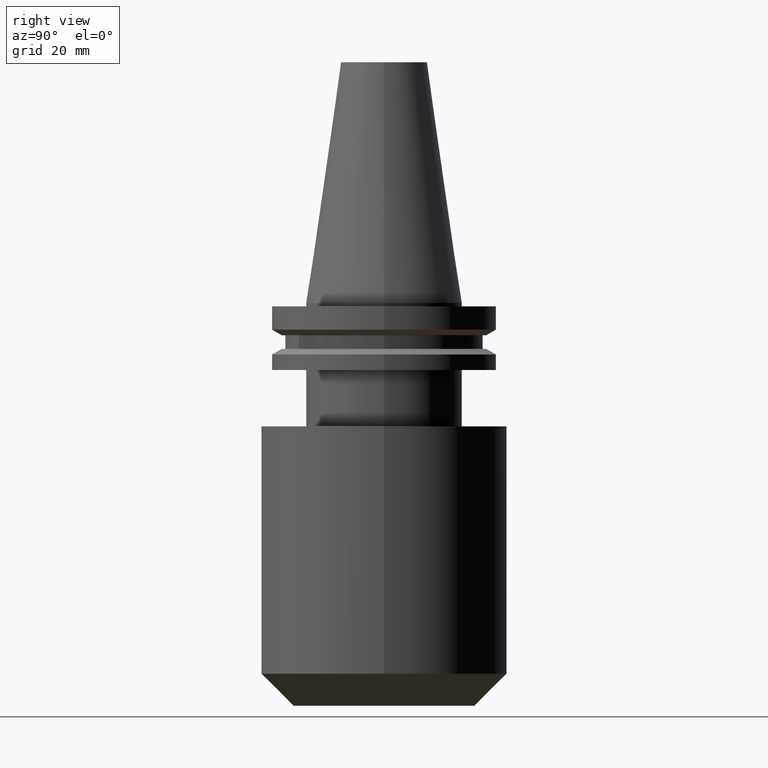
[diagram: clean part render]
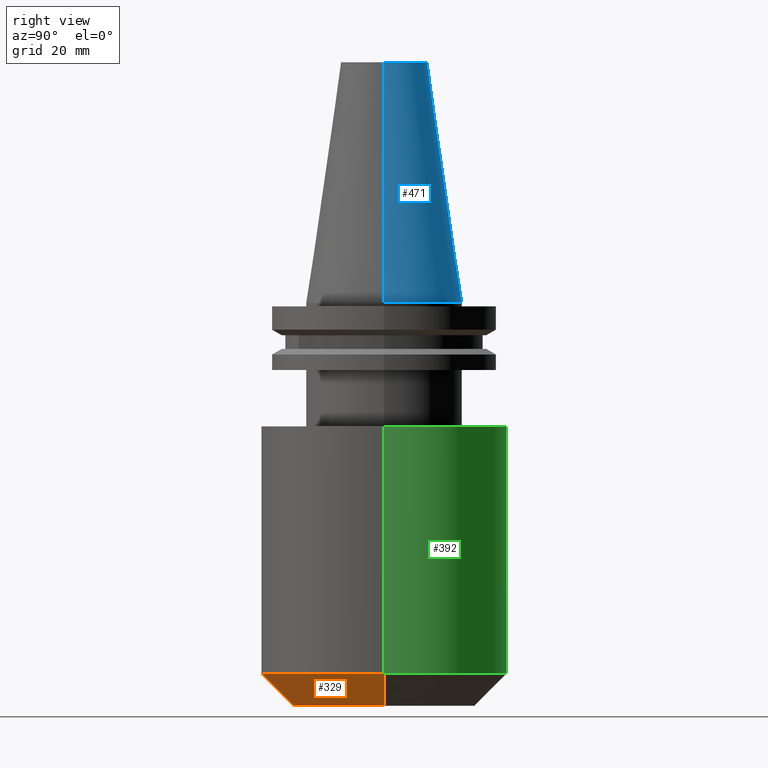
[diagram: same view with three faces highlighted in distinct colors, each labeled with its STEP entity id]
A machine part, right view with three faces highlighted in distinct colors.
Their STEP definitions:

[orange] entity #329 — the highlighted conical surface has half-angle 45 deg.
#101 = DIRECTION ( 'NONE',  ( 1.000000000000000000, 0.000000000000000000, 0.000000000000000000 ) ) ;
#164 = ORIENTED_EDGE ( 'NONE', *, *, #542, .F. ) ;
#181 = DIRECTION ( 'NONE',  ( -0.000000000000000000, -0.000000000000000000, 1.000000000000000000 ) ) ;
#185 = CARTESIAN_POINT ( 'NONE',  ( -34.95000000000000284, 4.280140563019999423E-15, -105.2000000000000028 ) ) ;
#197 = CIRCLE ( 'NONE', #677, 25.84999999999996945 ) ;
#223 = VECTOR ( 'NONE', #768, 999.9999999999998863 ) ;
#228 = VERTEX_POINT ( 'NONE', #643 ) ;
#279 = AXIS2_PLACEMENT_3D ( 'NONE', #843, #181, #101 ) ;
#295 = EDGE_CURVE ( 'NONE', #381, #228, #520, .T. ) ;
#315 = CARTESIAN_POINT ( 'NONE',  ( 0.000000000000000000, 0.000000000000000000, -105.2000000000000028 ) ) ;
#329 = ADVANCED_FACE ( 'NONE', ( #708 ), #615, .T. ) ;
#375 = ORIENTED_EDGE ( 'NONE', *, *, #295, .F. ) ;
#381 = VERTEX_POINT ( 'NONE', #185 ) ;
#448 = VERTEX_POINT ( 'NONE', #462 ) ;
#462 = CARTESIAN_POINT ( 'NONE',  ( -25.84999999999996945, 3.722926269407952606E-15, -114.2999999999999972 ) ) ;
#496 = CARTESIAN_POINT ( 'NONE',  ( -25.84999999999996945, 3.165711975795904211E-15, -114.2999999999999972 ) ) ;
#514 = DIRECTION ( 'NONE',  ( 1.000000000000000000, 0.000000000000000000, 0.000000000000000000 ) ) ;
#515 = ORIENTED_EDGE ( 'NONE', *, *, #657, .T. ) ;
#519 = CARTESIAN_POINT ( 'NONE',  ( 25.84999999999996945, 0.000000000000000000, -114.2999999999999972 ) ) ;
#520 = CIRCLE ( 'NONE', #804, 34.95000000000000284 ) ;
#523 = VECTOR ( 'NONE', #845, 999.9999999999998863 ) ;
#537 = CARTESIAN_POINT ( 'NONE',  ( 0.000000000000000000, 0.000000000000000000, -114.2999999999999972 ) ) ;
#542 = EDGE_CURVE ( 'NONE', #448, #381, #751, .T. ) ;
#569 = ORIENTED_EDGE ( 'NONE', *, *, #808, .T. ) ;
#582 = DIRECTION ( 'NONE',  ( -0.000000000000000000, -0.000000000000000000, 1.000000000000000000 ) ) ;
#615 = CONICAL_SURFACE ( 'NONE', #279, 25.84999999999996945, 0.7853981633974501664 ) ;
#618 = VERTEX_POINT ( 'NONE', #519 ) ;
#639 = CARTESIAN_POINT ( 'NONE',  ( 25.84999999999996945, 0.000000000000000000, -114.2999999999999972 ) ) ;
#643 = CARTESIAN_POINT ( 'NONE',  ( 34.95000000000000284, 0.000000000000000000, -105.2000000000000028 ) ) ;
#657 = EDGE_CURVE ( 'NONE', #618, #228, #851, .T. ) ;
#659 = DIRECTION ( 'NONE',  ( 1.000000000000000000, 0.000000000000000000, 0.000000000000000000 ) ) ;
#677 = AXIS2_PLACEMENT_3D ( 'NONE', #537, #742, #659 ) ;
#695 = EDGE_LOOP ( 'NONE', ( #164, #569, #515, #375 ) ) ;
#708 = FACE_OUTER_BOUND ( 'NONE', #695, .T. ) ;
#742 = DIRECTION ( 'NONE',  ( -0.000000000000000000, -0.000000000000000000, 1.000000000000000000 ) ) ;
#751 = LINE ( 'NONE', #496, #223 ) ;
#768 = DIRECTION ( 'NONE',  ( -0.7071067811865489050, 8.659560562354950115E-17, 0.7071067811865462405 ) ) ;
#804 = AXIS2_PLACEMENT_3D ( 'NONE', #315, #582, #514 ) ;
#808 = EDGE_CURVE ( 'NONE', #448, #618, #197, .T. ) ;
#843 = CARTESIAN_POINT ( 'NONE',  ( 0.000000000000000000, 0.000000000000000000, -114.2999999999999972 ) ) ;
#845 = DIRECTION ( 'NONE',  ( 0.7071067811865489050, 0.000000000000000000, 0.7071067811865462405 ) ) ;
#851 = LINE ( 'NONE', #639, #523 ) ;

[blue] entity #471 — the highlighted conical surface has half-angle 8.297 deg.
#31 = CARTESIAN_POINT ( 'NONE',  ( 0.000000000000000000, 0.000000000000000000, 0.000000000000000000 ) ) ;
#39 = DIRECTION ( 'NONE',  ( -0.1443082272672999711, 0.000000000000000000, -0.9895327864921755756 ) ) ;
#41 = VERTEX_POINT ( 'NONE', #554 ) ;
#50 = DIRECTION ( 'NONE',  ( 0.000000000000000000, 0.000000000000000000, -1.000000000000000000 ) ) ;
#60 = EDGE_CURVE ( 'NONE', #41, #95, #396, .T. ) ;
#71 = AXIS2_PLACEMENT_3D ( 'NONE', #31, #811, #428 ) ;
#95 = VERTEX_POINT ( 'NONE', #734 ) ;
#111 = CARTESIAN_POINT ( 'NONE',  ( -22.22500000000000142, 0.000000000000000000, 0.000000000000000000 ) ) ;
#137 = EDGE_LOOP ( 'NONE', ( #723, #294, #460, #379 ) ) ;
#170 = EDGE_CURVE ( 'NONE', #41, #372, #556, .T. ) ;
#264 = FACE_OUTER_BOUND ( 'NONE', #137, .T. ) ;
#268 = AXIS2_PLACEMENT_3D ( 'NONE', #788, #50, #522 ) ;
#294 = ORIENTED_EDGE ( 'NONE', *, *, #170, .T. ) ;
#319 = EDGE_CURVE ( 'NONE', #95, #562, #446, .T. ) ;
#337 = VECTOR ( 'NONE', #39, 999.9999999999998863 ) ;
#345 = DIRECTION ( 'NONE',  ( 0.1443082272672999711, 1.767266086135276757E-17, -0.9895327864921755756 ) ) ;
#372 = VERTEX_POINT ( 'NONE', #593 ) ;
#379 = ORIENTED_EDGE ( 'NONE', *, *, #319, .F. ) ;
#396 = CIRCLE ( 'NONE', #758, 12.27178102086201150 ) ;
#411 = DIRECTION ( 'NONE',  ( 1.000000000000000000, 0.000000000000000000, 0.000000000000000000 ) ) ;
#422 = CARTESIAN_POINT ( 'NONE',  ( 22.22500000000000142, 2.721777511104992849E-15, 0.000000000000000000 ) ) ;
#428 = DIRECTION ( 'NONE',  ( 1.000000000000000000, 0.000000000000000000, 0.000000000000000000 ) ) ;
#446 = LINE ( 'NONE', #111, #337 ) ;
#460 = ORIENTED_EDGE ( 'NONE', *, *, #830, .T. ) ;
#471 = ADVANCED_FACE ( 'NONE', ( #264 ), #507, .T. ) ;
#488 = VECTOR ( 'NONE', #345, 999.9999999999998863 ) ;
#503 = DIRECTION ( 'NONE',  ( -0.000000000000000000, -0.000000000000000000, 1.000000000000000000 ) ) ;
#507 = CONICAL_SURFACE ( 'NONE', #268, 22.22500000000000142, 0.1448138465474119174 ) ;
#522 = DIRECTION ( 'NONE',  ( -1.000000000000000000, 0.000000000000000000, 0.000000000000000000 ) ) ;
#554 = CARTESIAN_POINT ( 'NONE',  ( 12.27178102086201150, 2.112318622904291439E-15, 68.25000000000000000 ) ) ;
#556 = LINE ( 'NONE', #422, #488 ) ;
#562 = VERTEX_POINT ( 'NONE', #603 ) ;
#593 = CARTESIAN_POINT ( 'NONE',  ( 22.22500000000000142, 2.721777511104992849E-15, 0.000000000000000000 ) ) ;
#603 = CARTESIAN_POINT ( 'NONE',  ( -22.22500000000000142, 0.000000000000000000, 0.000000000000000000 ) ) ;
#634 = CIRCLE ( 'NONE', #71, 22.22500000000000142 ) ;
#723 = ORIENTED_EDGE ( 'NONE', *, *, #60, .F. ) ;
#734 = CARTESIAN_POINT ( 'NONE',  ( -12.27178102086201150, 0.000000000000000000, 68.25000000000000000 ) ) ;
#758 = AXIS2_PLACEMENT_3D ( 'NONE', #771, #503, #411 ) ;
#771 = CARTESIAN_POINT ( 'NONE',  ( 0.000000000000000000, 0.000000000000000000, 68.25000000000000000 ) ) ;
#788 = CARTESIAN_POINT ( 'NONE',  ( 0.000000000000000000, 0.000000000000000000, 0.000000000000000000 ) ) ;
#811 = DIRECTION ( 'NONE',  ( -0.000000000000000000, -0.000000000000000000, 1.000000000000000000 ) ) ;
#830 = EDGE_CURVE ( 'NONE', #372, #562, #634, .T. ) ;

[green] entity #392 — the highlighted cylindrical surface (partial cylindrical patch) has radius 34.95 mm, axis along (-0, -0, 1).
#133 = LINE ( 'NONE', #679, #778 ) ;
#138 = EDGE_CURVE ( 'NONE', #228, #381, #186, .T. ) ;
#141 = VECTOR ( 'NONE', #733, 1000.000000000000000 ) ;
#143 = DIRECTION ( 'NONE',  ( 1.000000000000000000, 0.000000000000000000, 0.000000000000000000 ) ) ;
#158 = VERTEX_POINT ( 'NONE', #212 ) ;
#185 = CARTESIAN_POINT ( 'NONE',  ( -34.95000000000000284, 4.280140563019999423E-15, -105.2000000000000028 ) ) ;
#186 = CIRCLE ( 'NONE', #466, 34.95000000000000284 ) ;
#191 = CARTESIAN_POINT ( 'NONE',  ( -34.95000000000000284, 4.280140563019999423E-15, 0.000000000000000000 ) ) ;
#195 = CIRCLE ( 'NONE', #796, 34.95000000000000284 ) ;
#212 = CARTESIAN_POINT ( 'NONE',  ( -34.95000000000000284, 4.280140563019999423E-15, -35.04999999999999716 ) ) ;
#228 = VERTEX_POINT ( 'NONE', #643 ) ;
#233 = DIRECTION ( 'NONE',  ( -0.000000000000000000, -0.000000000000000000, 1.000000000000000000 ) ) ;
#243 = EDGE_CURVE ( 'NONE', #705, #158, #195, .T. ) ;
#259 = DIRECTION ( 'NONE',  ( 1.000000000000000000, 0.000000000000000000, 0.000000000000000000 ) ) ;
#260 = ORIENTED_EDGE ( 'NONE', *, *, #684, .T. ) ;
#306 = ORIENTED_EDGE ( 'NONE', *, *, #138, .T. ) ;
#325 = CARTESIAN_POINT ( 'NONE',  ( 0.000000000000000000, 0.000000000000000000, 0.000000000000000000 ) ) ;
#352 = AXIS2_PLACEMENT_3D ( 'NONE', #325, #596, #259 ) ;
#381 = VERTEX_POINT ( 'NONE', #185 ) ;
#384 = DIRECTION ( 'NONE',  ( 1.000000000000000000, 0.000000000000000000, 0.000000000000000000 ) ) ;
#391 = FACE_OUTER_BOUND ( 'NONE', #559, .T. ) ;
#392 = ADVANCED_FACE ( 'NONE', ( #391 ), #656, .T. ) ;
#427 = CARTESIAN_POINT ( 'NONE',  ( 0.000000000000000000, 0.000000000000000000, -35.04999999999999716 ) ) ;
#466 = AXIS2_PLACEMENT_3D ( 'NONE', #606, #549, #143 ) ;
#480 = DIRECTION ( 'NONE',  ( -0.000000000000000000, -0.000000000000000000, 1.000000000000000000 ) ) ;
#505 = LINE ( 'NONE', #191, #141 ) ;
#524 = EDGE_CURVE ( 'NONE', #228, #705, #133, .T. ) ;
#549 = DIRECTION ( 'NONE',  ( -0.000000000000000000, -0.000000000000000000, 1.000000000000000000 ) ) ;
#559 = EDGE_LOOP ( 'NONE', ( #306, #260, #647, #835 ) ) ;
#596 = DIRECTION ( 'NONE',  ( -0.000000000000000000, -0.000000000000000000, 1.000000000000000000 ) ) ;
#606 = CARTESIAN_POINT ( 'NONE',  ( 0.000000000000000000, 0.000000000000000000, -105.2000000000000028 ) ) ;
#643 = CARTESIAN_POINT ( 'NONE',  ( 34.95000000000000284, 0.000000000000000000, -105.2000000000000028 ) ) ;
#647 = ORIENTED_EDGE ( 'NONE', *, *, #243, .F. ) ;
#656 = CYLINDRICAL_SURFACE ( 'NONE', #352, 34.95000000000000284 ) ;
#679 = CARTESIAN_POINT ( 'NONE',  ( 34.95000000000000284, 0.000000000000000000, 0.000000000000000000 ) ) ;
#684 = EDGE_CURVE ( 'NONE', #381, #158, #505, .T. ) ;
#705 = VERTEX_POINT ( 'NONE', #834 ) ;
#733 = DIRECTION ( 'NONE',  ( -0.000000000000000000, -0.000000000000000000, 1.000000000000000000 ) ) ;
#778 = VECTOR ( 'NONE', #480, 1000.000000000000000 ) ;
#796 = AXIS2_PLACEMENT_3D ( 'NONE', #427, #233, #384 ) ;
#834 = CARTESIAN_POINT ( 'NONE',  ( 34.95000000000000284, 0.000000000000000000, -35.04999999999999716 ) ) ;
#835 = ORIENTED_EDGE ( 'NONE', *, *, #524, .F. ) ;